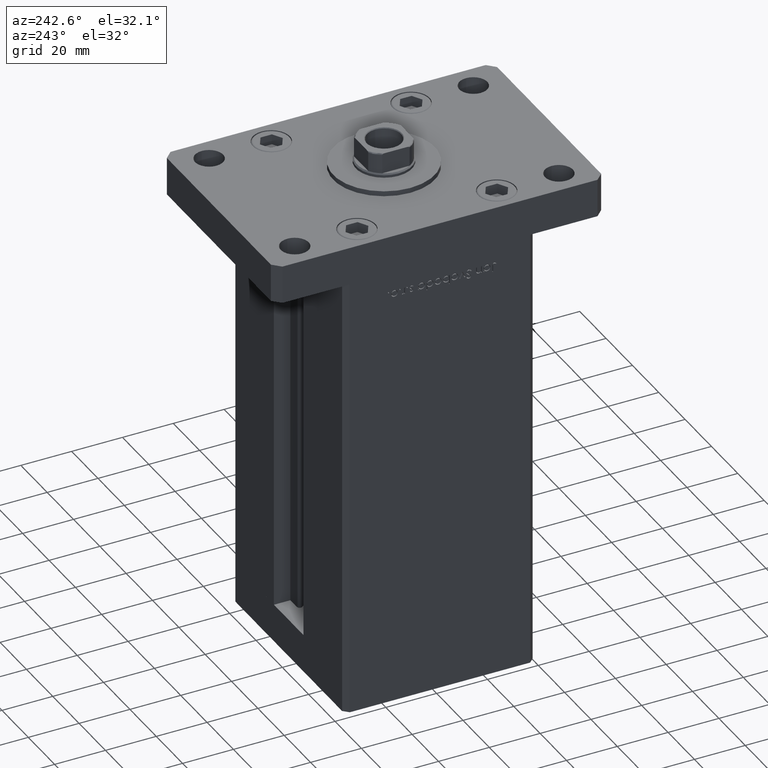
[diagram: clean part render]
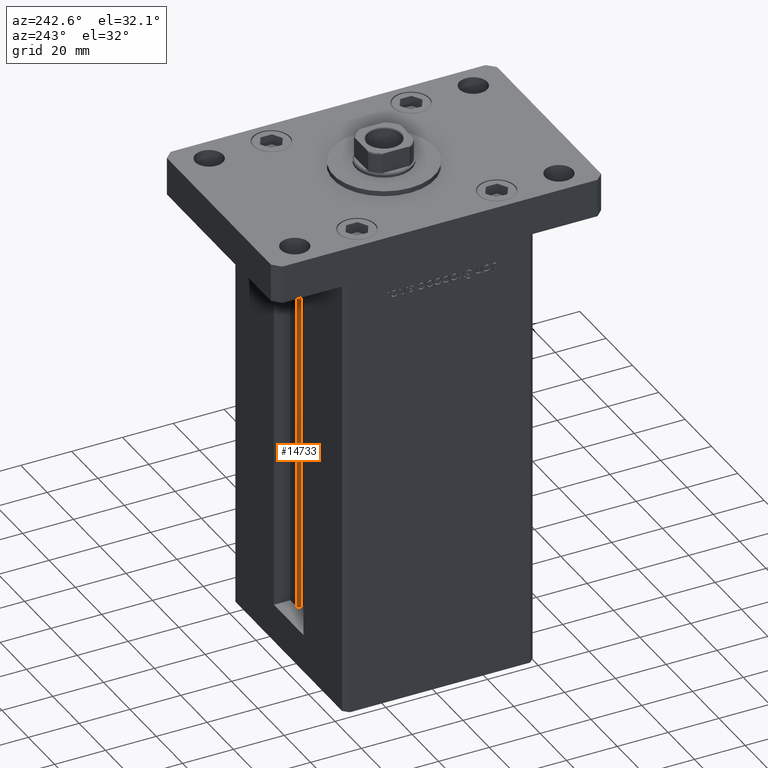
[diagram: same view with one face highlighted and labeled with its STEP entity id]
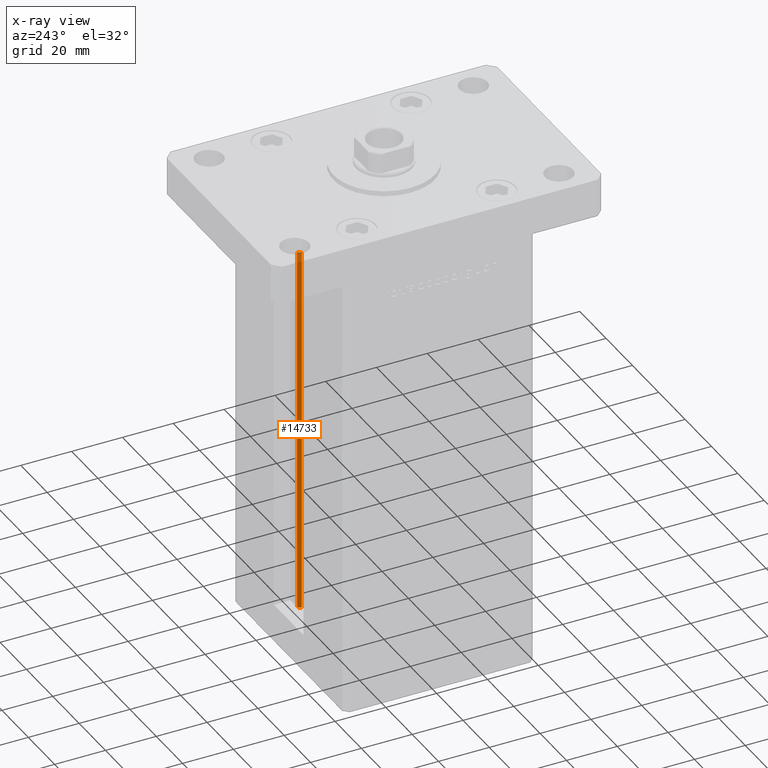
[diagram: x-ray of the same camera — body ghosted, the highlighted face saturated]
A machine part, auxiliary view. The second image highlights one B-rep face of the part: STEP entity #14733.
The next image is the same camera in x-ray: the body ghosted, the highlighted face saturated — about 13% of this face is hidden behind the body in this view.
In plain terms, the highlighted cylindrical surface (edge-blend (fillet) strip) has radius 0.9333 mm, axis along (0, 0, 1).
Its self-contained STEP definition (entity closure, byte-faithful):
#1689 = VERTEX_POINT ( 'NONE', #50993 ) ;
#1909 = LINE ( 'NONE', #50737, #13908 ) ;
#2025 = DIRECTION ( 'NONE',  ( 1.000000000000000000, 0.000000000000000000, 0.000000000000000000 ) ) ;
#2143 = DIRECTION ( 'NONE',  ( -0.000000000000000000, -0.000000000000000000, 1.000000000000000000 ) ) ;
#2286 = DIRECTION ( 'NONE',  ( -0.000000000000000000, -0.000000000000000000, -1.000000000000000000 ) ) ;
#4129 = DIRECTION ( 'NONE',  ( 0.000000000000000000, 0.000000000000000000, -1.000000000000000000 ) ) ;
#4754 = CARTESIAN_POINT ( 'NONE',  ( 6.183333333333999704, 30.99999999999999289, 146.5000000000000000 ) ) ;
#5448 = DIRECTION ( 'NONE',  ( -0.000000000000000000, -0.000000000000000000, 1.000000000000000000 ) ) ;
#6151 = CARTESIAN_POINT ( 'NONE',  ( 6.183333333333999704, 30.99999999999999289, 0.000000000000000000 ) ) ;
#6833 = VECTOR ( 'NONE', #2143, 1000.000000000000000 ) ;
#10082 = CIRCLE ( 'NONE', #40413, 0.9333333333340015914 ) ;
#10835 = VERTEX_POINT ( 'NONE', #32956 ) ;
#13205 = CYLINDRICAL_SURFACE ( 'NONE', #47580, 0.9333333333340015914 ) ;
#13428 = CARTESIAN_POINT ( 'NONE',  ( 6.183333333333999704, 30.06666666666599141, 0.000000000000000000 ) ) ;
#13732 = ORIENTED_EDGE ( 'NONE', *, *, #16279, .T. ) ;
#13908 = VECTOR ( 'NONE', #5448, 1000.000000000000000 ) ;
#14733 = ADVANCED_FACE ( 'NONE', ( #49812 ), #13205, .T. ) ;
#16279 = EDGE_CURVE ( 'NONE', #10835, #28578, #49408, .T. ) ;
#16998 = DIRECTION ( 'NONE',  ( 1.000000000000000000, 0.000000000000000000, 0.000000000000000000 ) ) ;
#17437 = EDGE_CURVE ( 'NONE', #36143, #28578, #1909, .T. ) ;
#19631 = ORIENTED_EDGE ( 'NONE', *, *, #24761, .F. ) ;
#24359 = CARTESIAN_POINT ( 'NONE',  ( 6.183333333333999704, 30.06666666666599141, 0.000000000000000000 ) ) ;
#24761 = EDGE_CURVE ( 'NONE', #1689, #36143, #10082, .T. ) ;
#28570 = ORIENTED_EDGE ( 'NONE', *, *, #17437, .F. ) ;
#28578 = VERTEX_POINT ( 'NONE', #4754 ) ;
#31181 = LINE ( 'NONE', #52318, #6833 ) ;
#32956 = CARTESIAN_POINT ( 'NONE',  ( 5.375042956467946276, 29.59999999999899245, 146.5000000000000000 ) ) ;
#32966 = AXIS2_PLACEMENT_3D ( 'NONE', #49693, #4129, #45369 ) ;
#33550 = DIRECTION ( 'NONE',  ( -0.000000000000000000, -0.000000000000000000, 1.000000000000000000 ) ) ;
#35879 = EDGE_CURVE ( 'NONE', #1689, #10835, #31181, .T. ) ;
#36143 = VERTEX_POINT ( 'NONE', #6151 ) ;
#40413 = AXIS2_PLACEMENT_3D ( 'NONE', #13428, #2286, #2025 ) ;
#40525 = ORIENTED_EDGE ( 'NONE', *, *, #35879, .T. ) ;
#45369 = DIRECTION ( 'NONE',  ( 1.000000000000000000, 0.000000000000000000, 0.000000000000000000 ) ) ;
#47580 = AXIS2_PLACEMENT_3D ( 'NONE', #24359, #33550, #16998 ) ;
#49408 = CIRCLE ( 'NONE', #32966, 0.9333333333340015914 ) ;
#49693 = CARTESIAN_POINT ( 'NONE',  ( 6.183333333333999704, 30.06666666666599141, 146.5000000000000000 ) ) ;
#49812 = FACE_OUTER_BOUND ( 'NONE', #52720, .T. ) ;
#50737 = CARTESIAN_POINT ( 'NONE',  ( 6.183333333333999704, 30.99999999999999289, 0.000000000000000000 ) ) ;
#50993 = CARTESIAN_POINT ( 'NONE',  ( 5.375042956467943611, 29.59999999999899245, 0.000000000000000000 ) ) ;
#52318 = CARTESIAN_POINT ( 'NONE',  ( 5.375042956467943611, 29.59999999999899245, 0.000000000000000000 ) ) ;
#52720 = EDGE_LOOP ( 'NONE', ( #28570, #19631, #40525, #13732 ) ) ;